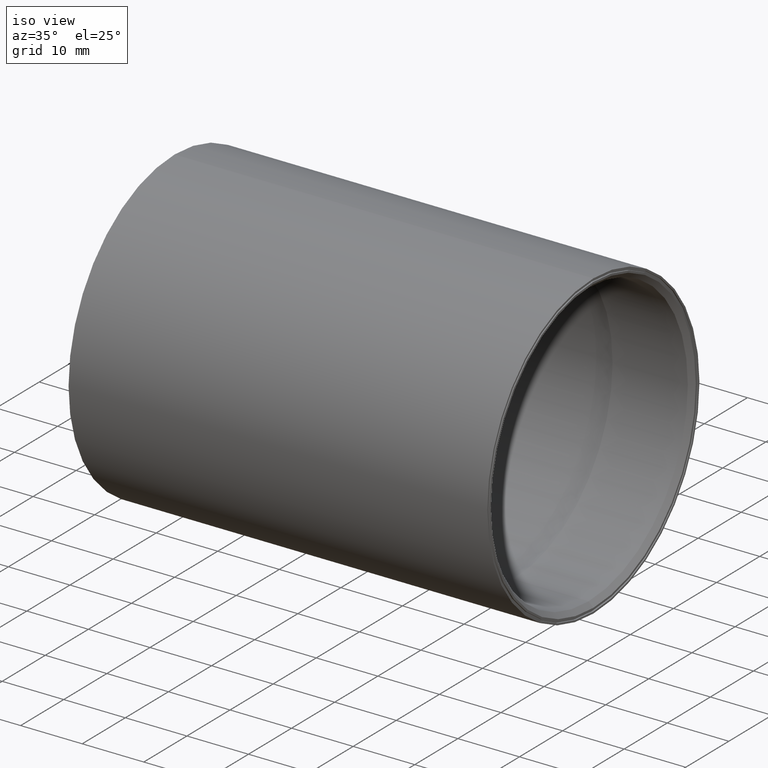
[diagram: clean part render]
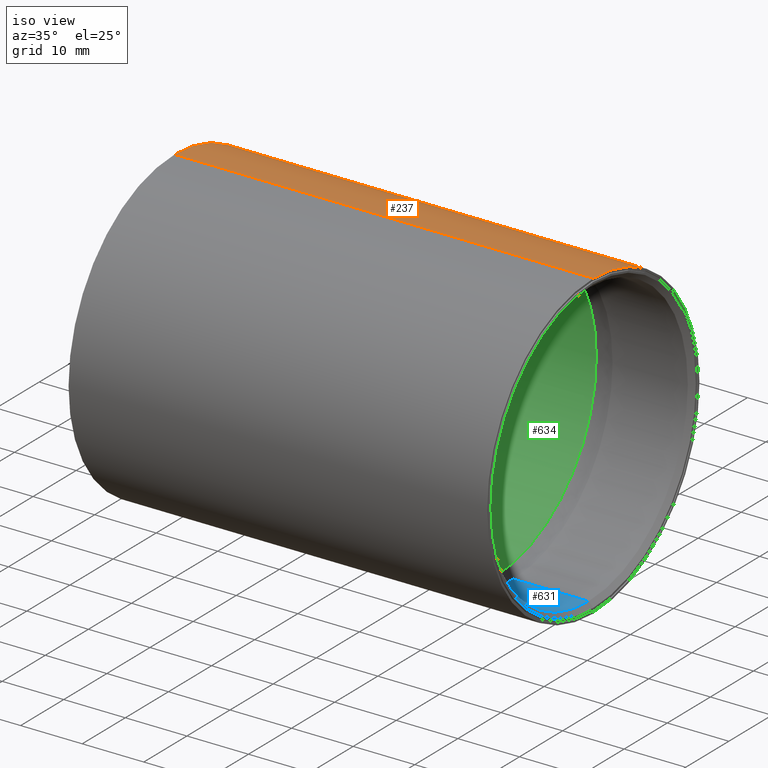
[diagram: same view with three faces highlighted in distinct colors, each labeled with its STEP entity id]
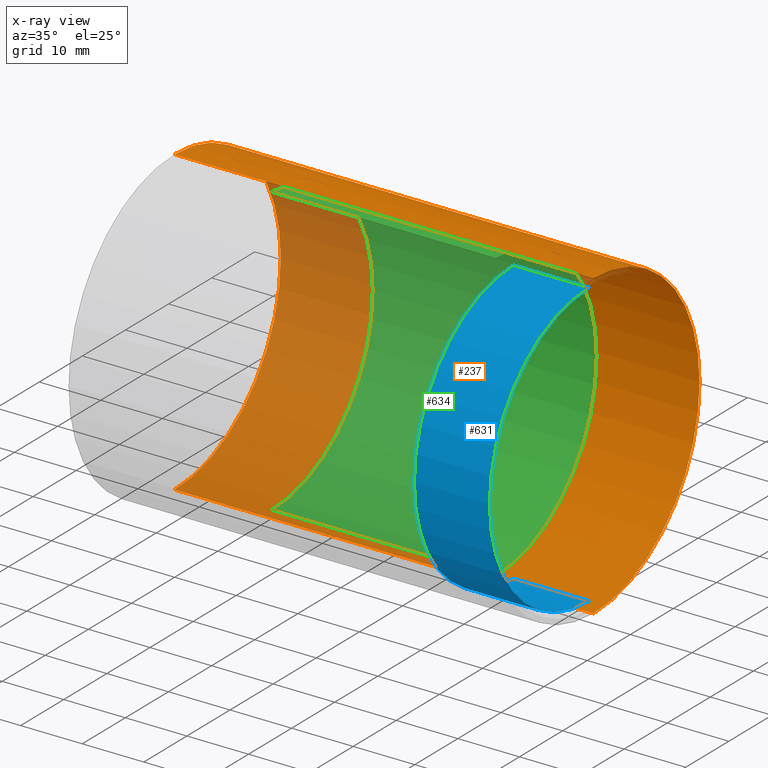
[diagram: x-ray of the same camera — body ghosted, the three highlighted faces saturated]
A machine part, iso view with three faces highlighted in distinct colors.
The next image is the same camera in x-ray (body ghosted, the three faces saturated) — at least one of them is partly hidden behind the body in this view.
Their STEP definitions:

[orange] entity #237 — the highlighted cylindrical surface (partial cylindrical patch) has radius 24.6062 mm, axis along (-1, -0, -0).
#8 = VECTOR ( 'NONE', #357, 39.37007874015748100 ) ;
#36 = DIRECTION ( 'NONE',  ( 0.0000000000000000000, 0.0000000000000000000, 1.000000000000000000 ) ) ;
#64 = CIRCLE ( 'NONE', #674, 0.9687499999999995600 ) ;
#75 = DIRECTION ( 'NONE',  ( -1.000000000000000000, -0.0000000000000000000, -0.0000000000000000000 ) ) ;
#107 = CARTESIAN_POINT ( 'NONE',  ( -1.338500000000000000, 0.0000000000000000000, 0.9687499999999995600 ) ) ;
#165 = LINE ( 'NONE', #651, #8 ) ;
#178 = CARTESIAN_POINT ( 'NONE',  ( -1.338500000000000000, 1.186376586673998000E-016, -0.9687499999999995600 ) ) ;
#190 = CIRCLE ( 'NONE', #504, 0.9687499999999995600 ) ;
#210 = CARTESIAN_POINT ( 'NONE',  ( -1.338500000000000000, 0.0000000000000000000, 0.0000000000000000000 ) ) ;
#232 = VERTEX_POINT ( 'NONE', #107 ) ;
#237 = ADVANCED_FACE ( 'NONE', ( #499 ), #327, .T. ) ;
#253 = DIRECTION ( 'NONE',  ( 0.0000000000000000000, 0.0000000000000000000, 1.000000000000000000 ) ) ;
#281 = VERTEX_POINT ( 'NONE', #178 ) ;
#283 = EDGE_CURVE ( 'NONE', #319, #455, #190, .T. ) ;
#316 = ORIENTED_EDGE ( 'NONE', *, *, #391, .T. ) ;
#319 = VERTEX_POINT ( 'NONE', #507 ) ;
#327 = CYLINDRICAL_SURFACE ( 'NONE', #421, 0.9687499999999995600 ) ;
#357 = DIRECTION ( 'NONE',  ( -1.000000000000000000, -0.0000000000000000000, -0.0000000000000000000 ) ) ;
#361 = ORIENTED_EDGE ( 'NONE', *, *, #479, .F. ) ;
#374 = CARTESIAN_POINT ( 'NONE',  ( 0.0000000000000000000, 1.186376586673998000E-016, -0.9687499999999995600 ) ) ;
#383 = CARTESIAN_POINT ( 'NONE',  ( 1.338500000000000000, 0.0000000000000000000, 0.0000000000000000000 ) ) ;
#391 = EDGE_CURVE ( 'NONE', #455, #281, #571, .T. ) ;
#400 = EDGE_LOOP ( 'NONE', ( #422, #316, #361, #548 ) ) ;
#410 = CARTESIAN_POINT ( 'NONE',  ( 1.338500000000000000, 1.186376586673998000E-016, -0.9687499999999995600 ) ) ;
#421 = AXIS2_PLACEMENT_3D ( 'NONE', #495, #541, #36 ) ;
#422 = ORIENTED_EDGE ( 'NONE', *, *, #283, .T. ) ;
#436 = DIRECTION ( 'NONE',  ( -1.000000000000000000, -0.0000000000000000000, -0.0000000000000000000 ) ) ;
#452 = DIRECTION ( 'NONE',  ( 0.0000000000000000000, 0.0000000000000000000, 1.000000000000000000 ) ) ;
#455 = VERTEX_POINT ( 'NONE', #410 ) ;
#479 = EDGE_CURVE ( 'NONE', #232, #281, #64, .T. ) ;
#495 = CARTESIAN_POINT ( 'NONE',  ( 0.0000000000000000000, 0.0000000000000000000, 0.0000000000000000000 ) ) ;
#499 = FACE_OUTER_BOUND ( 'NONE', #400, .T. ) ;
#504 = AXIS2_PLACEMENT_3D ( 'NONE', #383, #75, #452 ) ;
#507 = CARTESIAN_POINT ( 'NONE',  ( 1.338500000000000000, 0.0000000000000000000, 0.9687499999999995600 ) ) ;
#541 = DIRECTION ( 'NONE',  ( -1.000000000000000000, -0.0000000000000000000, -0.0000000000000000000 ) ) ;
#548 = ORIENTED_EDGE ( 'NONE', *, *, #550, .F. ) ;
#550 = EDGE_CURVE ( 'NONE', #319, #232, #165, .T. ) ;
#571 = LINE ( 'NONE', #374, #633 ) ;
#600 = DIRECTION ( 'NONE',  ( -1.000000000000000000, -0.0000000000000000000, -0.0000000000000000000 ) ) ;
#633 = VECTOR ( 'NONE', #436, 39.37007874015748100 ) ;
#651 = CARTESIAN_POINT ( 'NONE',  ( 0.0000000000000000000, 0.0000000000000000000, 0.9687499999999995600 ) ) ;
#674 = AXIS2_PLACEMENT_3D ( 'NONE', #210, #600, #253 ) ;

[blue] entity #631 — the highlighted cylindrical surface (partial cylindrical patch) has radius 22.9997 mm, axis along (-1, -0, -0).
#1 = DIRECTION ( 'NONE',  ( 0.0000000000000000000, 0.0000000000000000000, 1.000000000000000000 ) ) ;
#14 = VECTOR ( 'NONE', #604, 39.37007874015748100 ) ;
#22 = CARTESIAN_POINT ( 'NONE',  ( 0.8274999999999999000, 1.116877880822386100E-016, -0.9054999999999999700 ) ) ;
#32 = AXIS2_PLACEMENT_3D ( 'NONE', #170, #549, #500 ) ;
#95 = DIRECTION ( 'NONE',  ( -1.000000000000000000, -0.0000000000000000000, -0.0000000000000000000 ) ) ;
#98 = CARTESIAN_POINT ( 'NONE',  ( 1.308500000000000400, 0.0000000000000000000, 0.9054999999999999700 ) ) ;
#128 = LINE ( 'NONE', #566, #567 ) ;
#148 = EDGE_CURVE ( 'NONE', #426, #637, #128, .T. ) ;
#170 = CARTESIAN_POINT ( 'NONE',  ( 0.8274999999999999000, 0.0000000000000000000, 0.0000000000000000000 ) ) ;
#201 = DIRECTION ( 'NONE',  ( 1.000000000000000000, -0.0000000000000000000, -0.0000000000000000000 ) ) ;
#220 = EDGE_CURVE ( 'NONE', #637, #575, #512, .T. ) ;
#259 = FACE_OUTER_BOUND ( 'NONE', #606, .T. ) ;
#295 = ORIENTED_EDGE ( 'NONE', *, *, #399, .T. ) ;
#311 = DIRECTION ( 'NONE',  ( -1.000000000000000000, -0.0000000000000000000, -0.0000000000000000000 ) ) ;
#324 = EDGE_CURVE ( 'NONE', #450, #575, #442, .T. ) ;
#349 = CIRCLE ( 'NONE', #463, 0.9054999999999999700 ) ;
#376 = ORIENTED_EDGE ( 'NONE', *, *, #324, .F. ) ;
#399 = EDGE_CURVE ( 'NONE', #450, #426, #349, .T. ) ;
#404 = CARTESIAN_POINT ( 'NONE',  ( 1.308500000000000400, 1.108917676627928300E-016, -0.9054999999999999700 ) ) ;
#426 = VERTEX_POINT ( 'NONE', #404 ) ;
#430 = ORIENTED_EDGE ( 'NONE', *, *, #220, .T. ) ;
#435 = ORIENTED_EDGE ( 'NONE', *, *, #148, .T. ) ;
#442 = LINE ( 'NONE', #538, #14 ) ;
#450 = VERTEX_POINT ( 'NONE', #98 ) ;
#463 = AXIS2_PLACEMENT_3D ( 'NONE', #524, #201, #585 ) ;
#478 = CARTESIAN_POINT ( 'NONE',  ( 0.8274999999999999000, 0.0000000000000000000, 0.9054999999999999700 ) ) ;
#500 = DIRECTION ( 'NONE',  ( 0.0000000000000000000, 0.0000000000000000000, 1.000000000000000000 ) ) ;
#502 = AXIS2_PLACEMENT_3D ( 'NONE', #531, #311, #1 ) ;
#512 = CIRCLE ( 'NONE', #32, 0.9054999999999999700 ) ;
#524 = CARTESIAN_POINT ( 'NONE',  ( 1.308500000000000400, 0.0000000000000000000, 0.0000000000000000000 ) ) ;
#531 = CARTESIAN_POINT ( 'NONE',  ( 0.0000000000000000000, 0.0000000000000000000, 0.0000000000000000000 ) ) ;
#538 = CARTESIAN_POINT ( 'NONE',  ( 0.0000000000000000000, 0.0000000000000000000, 0.9054999999999999700 ) ) ;
#549 = DIRECTION ( 'NONE',  ( -1.000000000000000000, -0.0000000000000000000, -0.0000000000000000000 ) ) ;
#566 = CARTESIAN_POINT ( 'NONE',  ( 0.0000000000000000000, 1.108917676627928300E-016, -0.9054999999999999700 ) ) ;
#567 = VECTOR ( 'NONE', #95, 39.37007874015748100 ) ;
#575 = VERTEX_POINT ( 'NONE', #478 ) ;
#585 = DIRECTION ( 'NONE',  ( 0.0000000000000000000, 0.0000000000000000000, 1.000000000000000000 ) ) ;
#604 = DIRECTION ( 'NONE',  ( -1.000000000000000000, -0.0000000000000000000, -0.0000000000000000000 ) ) ;
#606 = EDGE_LOOP ( 'NONE', ( #295, #435, #430, #376 ) ) ;
#631 = ADVANCED_FACE ( 'NONE', ( #259 ), #683, .F. ) ;
#637 = VERTEX_POINT ( 'NONE', #22 ) ;
#683 = CYLINDRICAL_SURFACE ( 'NONE', #502, 0.9054999999999999700 ) ;

[green] entity #634 — the highlighted cylindrical surface (partial cylindrical patch) has radius 23.3299 mm, axis along (-1, -0, -0).
#10 = ORIENTED_EDGE ( 'NONE', *, *, #332, .F. ) ;
#17 = AXIS2_PLACEMENT_3D ( 'NONE', #66, #429, #106 ) ;
#24 = LINE ( 'NONE', #50, #278 ) ;
#39 = VERTEX_POINT ( 'NONE', #523 ) ;
#50 = CARTESIAN_POINT ( 'NONE',  ( 0.0000000000000000000, 1.124838085016844000E-016, -0.9185000000000000900 ) ) ;
#57 = CARTESIAN_POINT ( 'NONE',  ( 0.0000000000000000000, 0.0000000000000000000, 0.0000000000000000000 ) ) ;
#63 = VERTEX_POINT ( 'NONE', #303 ) ;
#66 = CARTESIAN_POINT ( 'NONE',  ( 0.7142259959213941300, 0.0000000000000000000, 0.0000000000000000000 ) ) ;
#92 = VERTEX_POINT ( 'NONE', #354 ) ;
#106 = DIRECTION ( 'NONE',  ( 0.0000000000000000000, 0.0000000000000000000, 1.000000000000000000 ) ) ;
#121 = DIRECTION ( 'NONE',  ( -1.000000000000000000, -0.0000000000000000000, -0.0000000000000000000 ) ) ;
#137 = VERTEX_POINT ( 'NONE', #397 ) ;
#152 = CIRCLE ( 'NONE', #17, 0.9185000000000000900 ) ;
#243 = VECTOR ( 'NONE', #337, 39.37007874015748100 ) ;
#275 = DIRECTION ( 'NONE',  ( -1.000000000000000000, -0.0000000000000000000, -0.0000000000000000000 ) ) ;
#278 = VECTOR ( 'NONE', #527, 39.37007874015748100 ) ;
#296 = EDGE_CURVE ( 'NONE', #137, #92, #596, .T. ) ;
#303 = CARTESIAN_POINT ( 'NONE',  ( 0.7142259959213941300, 0.0000000000000000000, 0.9185000000000000900 ) ) ;
#326 = ORIENTED_EDGE ( 'NONE', *, *, #537, .F. ) ;
#332 = EDGE_CURVE ( 'NONE', #63, #39, #152, .T. ) ;
#337 = DIRECTION ( 'NONE',  ( -1.000000000000000000, -0.0000000000000000000, -0.0000000000000000000 ) ) ;
#354 = CARTESIAN_POINT ( 'NONE',  ( -0.7142259959213941300, 1.124838085016844000E-016, -0.9185000000000000900 ) ) ;
#370 = EDGE_LOOP ( 'NONE', ( #326, #10, #620, #671 ) ) ;
#384 = CARTESIAN_POINT ( 'NONE',  ( 0.0000000000000000000, 0.0000000000000000000, 0.9185000000000000900 ) ) ;
#388 = CYLINDRICAL_SURFACE ( 'NONE', #532, 0.9185000000000000900 ) ;
#397 = CARTESIAN_POINT ( 'NONE',  ( -0.7142259959213941300, 0.0000000000000000000, 0.9185000000000000900 ) ) ;
#407 = LINE ( 'NONE', #384, #243 ) ;
#429 = DIRECTION ( 'NONE',  ( -1.000000000000000000, -0.0000000000000000000, -0.0000000000000000000 ) ) ;
#433 = FACE_OUTER_BOUND ( 'NONE', #370, .T. ) ;
#457 = CARTESIAN_POINT ( 'NONE',  ( -0.7142259959213941300, 0.0000000000000000000, 0.0000000000000000000 ) ) ;
#509 = DIRECTION ( 'NONE',  ( 0.0000000000000000000, 0.0000000000000000000, 1.000000000000000000 ) ) ;
#523 = CARTESIAN_POINT ( 'NONE',  ( 0.7142259959213941300, 1.124838085016844000E-016, -0.9185000000000000900 ) ) ;
#527 = DIRECTION ( 'NONE',  ( -1.000000000000000000, -0.0000000000000000000, -0.0000000000000000000 ) ) ;
#532 = AXIS2_PLACEMENT_3D ( 'NONE', #57, #275, #668 ) ;
#537 = EDGE_CURVE ( 'NONE', #39, #92, #24, .T. ) ;
#596 = CIRCLE ( 'NONE', #614, 0.9185000000000000900 ) ;
#614 = AXIS2_PLACEMENT_3D ( 'NONE', #457, #121, #509 ) ;
#620 = ORIENTED_EDGE ( 'NONE', *, *, #652, .T. ) ;
#634 = ADVANCED_FACE ( 'NONE', ( #433 ), #388, .F. ) ;
#652 = EDGE_CURVE ( 'NONE', #63, #137, #407, .T. ) ;
#668 = DIRECTION ( 'NONE',  ( 0.0000000000000000000, 0.0000000000000000000, 1.000000000000000000 ) ) ;
#671 = ORIENTED_EDGE ( 'NONE', *, *, #296, .T. ) ;